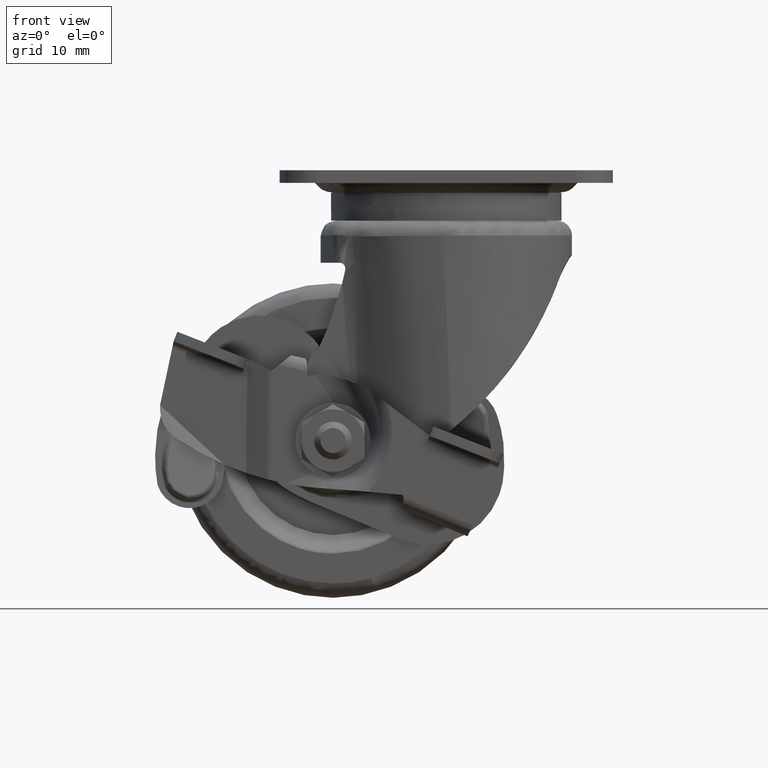
[diagram: clean part render]
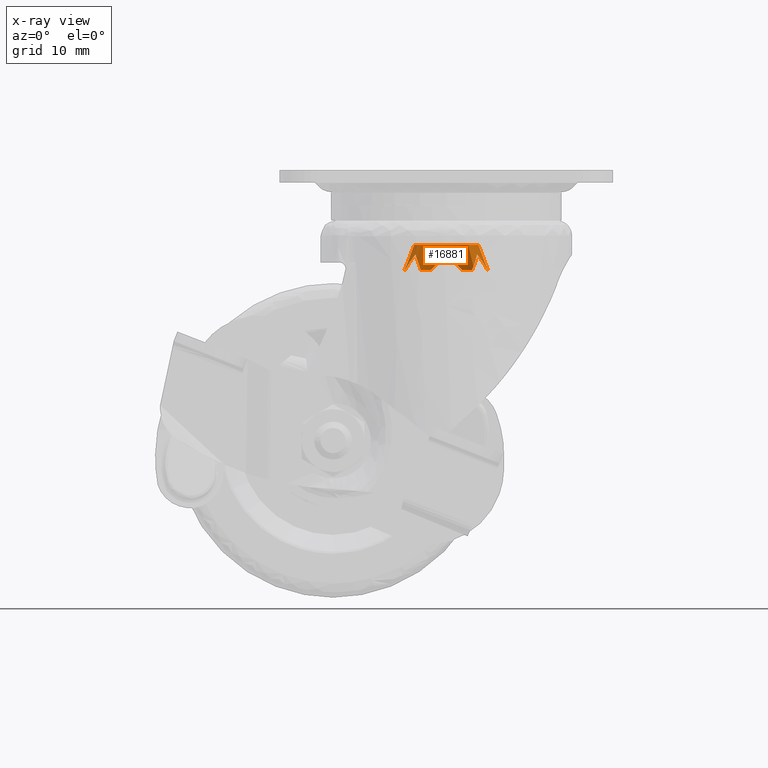
[diagram: x-ray — body ghosted, one internal face saturated and labeled with its STEP entity id]
A machine part, front view, then the same camera in x-ray: the body is ghosted and one INTERNAL B-rep face — a face not visible from any outside direction — is saturated and labeled: STEP entity #16881.
In plain terms, the highlighted face is a freeform B-spline surface patch.
Its self-contained STEP definition (entity closure, byte-faithful):
#16635=CARTESIAN_POINT('',(-5.449134084889035,-3.937214617433554,-16.096959609233267));
#16636=CARTESIAN_POINT('',(-8.955191026088144,0.915194061853354,-16.096959609233270));
#16637=CARTESIAN_POINT('',(-4.540061171503106,4.958080856323520,-16.096959609233270));
#16638=CARTESIAN_POINT('',(0.418019684820414,9.498142027826624,-16.096959609233267));
#16639=CARTESIAN_POINT('',(4.958080856323520,4.540061171503107,-16.096959609233270));
#16640=CARTESIAN_POINT('',(9.498142027826624,-0.418019684820414,-16.096959609233267));
#16641=CARTESIAN_POINT('',(4.540061171503107,-4.958080856323520,-16.096959609233270));
#16642=CARTESIAN_POINT('',(-4.705523250297759,-3.399926416771786,-13.927099902690951));
#16643=CARTESIAN_POINT('',(-7.733129507855321,0.790302985666593,-13.927099902690959));
#16644=CARTESIAN_POINT('',(-3.920506096468532,4.281481127613257,-13.927099902690959));
#16645=CARTESIAN_POINT('',(0.360975031144725,8.201987224081789,-13.927099902690951));
#16646=CARTESIAN_POINT('',(4.281481127613257,3.920506096468534,-13.927099902690959));
#16647=CARTESIAN_POINT('',(8.201987224081789,-0.360975031144724,-13.927099902690951));
#16648=CARTESIAN_POINT('',(3.920506096468534,-4.281481127613257,-13.927099902690959));
#16649=CARTESIAN_POINT('',(-4.088614831668794,-2.954185716395307,-11.697600842134889));
#16650=CARTESIAN_POINT('',(-6.719292694820312,0.686691859083704,-11.697600842134888));
#16651=CARTESIAN_POINT('',(-3.406515815781985,3.720165921773288,-11.697600842134893));
#16652=CARTESIAN_POINT('',(0.313650105991302,7.126681737555273,-11.697600842134886));
#16653=CARTESIAN_POINT('',(3.720165921773288,3.406515815781986,-11.697600842134893));
#16654=CARTESIAN_POINT('',(7.126681737555273,-0.313650105991301,-11.697600842134886));
#16655=CARTESIAN_POINT('',(3.406515815781986,-3.720165921773288,-11.697600842134893));
#16663=(BOUNDED_SURFACE()B_SPLINE_SURFACE(2,2,((#16635,#16642,#16649),(#16636,#16643,#16650),(#16637,#16644,#16651),(#16638,#16645,#16652),(#16639,#16646,#16653),(#16640,#16647,#16654),(#16641,#16648,#16655)),.UNSPECIFIED.,.F.,.F.,.U.)B_SPLINE_SURFACE_WITH_KNOTS((3,2,2,3),(3,3),(0.0,10.247454277570441,21.385991535799182,32.524528794027923),(0.0,4.710170384211757),.UNSPECIFIED.)GEOMETRIC_REPRESENTATION_ITEM()RATIONAL_B_SPLINE_SURFACE(((0.927555625836429,0.926969669273202,0.927553622222715),(0.708145766048240,0.707698415347345,0.708144236381955),(0.969347980081799,0.968735622401937,0.969345886192384),(0.685432530045322,0.684999527777380,0.685431049441918),(0.969347980081799,0.968735622401937,0.969345886192384),(0.685432530045322,0.684999527777380,0.685431049441918),(0.969347980081799,0.968735622401937,0.969345886192384)))REPRESENTATION_ITEM('')SURFACE());
#16664=CARTESIAN_POINT('',(-4.144877228666406,-2.994837520659926,-11.899865000006351));
#16665=VERTEX_POINT('',#16664);
#16666=CARTESIAN_POINT('',(-5.113615063323320,0.0,-11.899865000000020));
#16667=VERTEX_POINT('',#16666);
#16668=CARTESIAN_POINT('',(-4.144877228666406,-2.994837520659926,-11.899865000006351));
#16669=CARTESIAN_POINT('',(-4.359644845351428,-2.697705762188450,-11.899865000004960));
#16670=CARTESIAN_POINT('',(-4.674989001811476,-2.144347411354441,-11.899865000002890));
#16671=CARTESIAN_POINT('',(-5.024108949010861,-1.133122832408481,-11.899865000000601));
#16672=CARTESIAN_POINT('',(-5.113726585576830,-0.433287944701465,-11.899865000000020));
#16673=CARTESIAN_POINT('',(-5.113615063323320,0.0,-11.899865000000020));
#16674=B_SPLINE_CURVE_WITH_KNOTS('',3,(#16668,#16669,#16670,#16671,#16672,#16673),.UNSPECIFIED.,.F.,.U.,(4,1,1,4),(0.000000018171117,1.099872148239919,1.899758068785403,3.199606790686906),.UNSPECIFIED.);
#16675=EDGE_CURVE('',#16665,#16667,#16674,.T.);
#16676=ORIENTED_EDGE('',*,*,#16675,.T.);
#16677=CARTESIAN_POINT('',(0.000001847917771,5.113615063322986,-11.899865000000020));
#16678=VERTEX_POINT('',#16677);
#16679=CARTESIAN_POINT('',(-5.113615063323320,0.0,-11.899865000000020));
#16680=CARTESIAN_POINT('',(-5.113711384259623,0.418357568356855,-11.899865000000069));
#16681=CARTESIAN_POINT('',(-5.012962583121976,1.234116018872533,-11.899864999999989));
#16682=CARTESIAN_POINT('',(-4.617641409608623,2.277967402407127,-11.899865000000011));
#16683=CARTESIAN_POINT('',(-4.055995312073820,3.164848055509804,-11.899865000000069));
#16684=CARTESIAN_POINT('',(-3.407620640970472,3.854282766076485,-11.899864999999970));
#16685=CARTESIAN_POINT('',(-2.556843280218541,4.469248250524406,-11.899865000000011));
#16686=CARTESIAN_POINT('',(-1.443218512676358,4.971166821555190,-11.899865000000039));
#16687=CARTESIAN_POINT('',(-0.522965593392162,5.113869616237612,-11.899865000000000));
#16688=CARTESIAN_POINT('',(0.000001847917771,5.113615063322986,-11.899865000000020));
#16689=B_SPLINE_CURVE_WITH_KNOTS('',3,(#16679,#16680,#16681,#16682,#16683,#16684,#16685,#16686,#16687,#16688),.UNSPECIFIED.,.F.,.U.,(4,1,1,1,1,1,1,4),(0.000000179408039,1.255058180444232,2.447407358371201,3.325987980235237,4.392725890232030,5.271307691343422,6.463656868919114,8.032499199850999),.UNSPECIFIED.);
#16690=EDGE_CURVE('',#16667,#16678,#16689,.T.);
#16691=ORIENTED_EDGE('',*,*,#16690,.T.);
#16692=CARTESIAN_POINT('',(5.113615063323320,0.0,-11.899865000000020));
#16693=VERTEX_POINT('',#16692);
#16694=CARTESIAN_POINT('',(0.000001847917771,5.113615063322986,-11.899865000000020));
#16695=CARTESIAN_POINT('',(0.418362890446319,5.113725704022307,-11.899865000000011));
#16696=CARTESIAN_POINT('',(1.150429971335089,5.023241293209762,-11.899865000000020));
#16697=CARTESIAN_POINT('',(2.200989269925056,4.654606701367002,-11.899865000000039));
#16698=CARTESIAN_POINT('',(3.230066656679942,4.038044947416919,-11.899864999999959));
#16699=CARTESIAN_POINT('',(4.101307911535546,3.145108270504455,-11.899865000000140));
#16700=CARTESIAN_POINT('',(4.677478748522788,2.142027345781802,-11.899864999999849));
#16701=CARTESIAN_POINT('',(5.025840476509022,1.129514862383555,-11.899865000000229));
#16702=CARTESIAN_POINT('',(5.113710282190726,0.418358289347145,-11.899864999999821));
#16703=CARTESIAN_POINT('',(5.113615063323320,0.0,-11.899865000000020));
#16704=B_SPLINE_CURVE_WITH_KNOTS('',3,(#16694,#16695,#16696,#16697,#16698,#16699,#16700,#16701,#16702,#16703),.UNSPECIFIED.,.F.,.U.,(4,1,1,1,1,1,1,4),(0.000000180047652,1.255057855379913,2.196390928832205,3.325987117578224,4.832014713771744,5.898863194924815,6.777439440918193,8.032497116803933),.UNSPECIFIED.);
#16705=EDGE_CURVE('',#16678,#16693,#16704,.T.);
#16706=ORIENTED_EDGE('',*,*,#16705,.T.);
#16707=CARTESIAN_POINT('',(3.453392020372506,-3.771358186314378,-11.899865000001579));
#16708=VERTEX_POINT('',#16707);
#16709=CARTESIAN_POINT('',(5.113615063323320,0.0,-11.899865000000020));
#16710=CARTESIAN_POINT('',(5.113830415033669,-0.485991131172849,-11.899864999999970));
#16711=CARTESIAN_POINT('',(5.005698864520578,-1.236895930233372,-11.899865000000220));
#16712=CARTESIAN_POINT('',(4.643901890619401,-2.189705584385952,-11.899865000000410));
#16713=CARTESIAN_POINT('',(4.182870625596286,-2.998028858867432,-11.899865000000929));
#16714=CARTESIAN_POINT('',(3.746699039421263,-3.502900552549378,-11.899865000001370));
#16715=CARTESIAN_POINT('',(3.453392020372506,-3.771358186314378,-11.899865000001579));
#16716=B_SPLINE_CURVE_WITH_KNOTS('',3,(#16709,#16710,#16711,#16712,#16713,#16714,#16715),.UNSPECIFIED.,.F.,.U.,(4,1,1,1,4),(0.000000053353065,1.457902072303825,2.253100577155337,3.048332165611606,4.241162091269716),.UNSPECIFIED.);
#16717=EDGE_CURVE('',#16693,#16708,#16716,.T.);
#16718=ORIENTED_EDGE('',*,*,#16717,.T.);
#16719=CARTESIAN_POINT('',(4.324194217738986,-4.722338260216011,-15.327437983918720));
#16720=VERTEX_POINT('',#16719);
#16721=CARTESIAN_POINT('',(4.324194217738986,-4.722338260216011,-15.327437983918720));
#16722=CARTESIAN_POINT('',(4.012688057788555,-4.382150612679456,-14.197076791412419));
#16723=CARTESIAN_POINT('',(3.722273278536443,-4.064996304765987,-13.053970659251540));
#16724=CARTESIAN_POINT('',(3.453392020372506,-3.771358186314378,-11.899865000001579));
#16725=B_SPLINE_CURVE_WITH_KNOTS('',3,(#16721,#16722,#16723,#16724),.UNSPECIFIED.,.F.,.U.,(4,4),(5.025935E-011,3.662559241325293),.UNSPECIFIED.);
#16726=EDGE_CURVE('',#16720,#16708,#16725,.T.);
#16727=ORIENTED_EDGE('',*,*,#16726,.F.);
#16728=CARTESIAN_POINT('',(4.894200365697100,-2.825667898603170,-13.399858000000039));
#16729=VERTEX_POINT('',#16728);
#16730=CARTESIAN_POINT('',(4.324194217738986,-4.722338260216011,-15.327437983918720));
#16731=CARTESIAN_POINT('',(4.416888238713627,-4.510158791980711,-15.097336728784960));
#16732=CARTESIAN_POINT('',(4.501017313528910,-4.294113558064429,-14.868170094410530));
#16733=CARTESIAN_POINT('',(4.713613942445361,-3.672088107631849,-14.223177876083060));
#16734=CARTESIAN_POINT('',(4.821364310443980,-3.256757244240304,-13.809612984940690));
#16735=CARTESIAN_POINT('',(4.894200365697100,-2.825667898603170,-13.399858000000039));
#16736=B_SPLINE_CURVE_WITH_KNOTS('',3,(#16730,#16731,#16732,#16733,#16734,#16735),.UNSPECIFIED.,.F.,.U.,(4,2,4),(0.226253729383350,0.500000000000000,1.0),.UNSPECIFIED.);
#16737=EDGE_CURVE('',#16720,#16729,#16736,.T.);
#16738=ORIENTED_EDGE('',*,*,#16737,.T.);
#16739=CARTESIAN_POINT('',(6.577023302978340,-0.910486745589110,-15.899865000000050));
#16740=VERTEX_POINT('',#16739);
#16741=CARTESIAN_POINT('',(4.894200365697100,-2.825667898603170,-13.399858000000039));
#16742=CARTESIAN_POINT('',(5.231120287556204,-2.547046153782086,-13.809611469992040));
#16743=CARTESIAN_POINT('',(5.536935801285791,-2.246066967007685,-14.223174848613940));
#16744=CARTESIAN_POINT('',(6.095771606596153,-1.606160077940586,-15.056768373257899));
#16745=CARTESIAN_POINT('',(6.348696873278837,-1.267164072993359,-15.476810158664900));
#16746=CARTESIAN_POINT('',(6.577023302978340,-0.910486745589110,-15.899865000000050));
#16747=B_SPLINE_CURVE_WITH_KNOTS('',3,(#16741,#16742,#16743,#16744,#16745,#16746),.UNSPECIFIED.,.F.,.U.,(4,2,4),(0.0,0.500000000000000,1.0),.UNSPECIFIED.);
#16748=EDGE_CURVE('',#16729,#16740,#16747,.T.);
#16749=ORIENTED_EDGE('',*,*,#16748,.T.);
#16750=CARTESIAN_POINT('',(6.577023302978351,0.910486745589032,-15.899865000000050));
#16751=VERTEX_POINT('',#16750);
#16752=CARTESIAN_POINT('',(6.577023302978351,0.910486745589032,-15.899865000000050));
#16753=CARTESIAN_POINT('',(6.660628315754039,0.307332871546580,-15.899865000000050));
#16754=CARTESIAN_POINT('',(6.660676238427735,-0.307332743751825,-15.899865000000061));
#16755=CARTESIAN_POINT('',(6.577023302978340,-0.910486745589110,-15.899865000000050));
#16756=B_SPLINE_CURVE_WITH_KNOTS('',3,(#16752,#16753,#16754,#16755),.UNSPECIFIED.,.F.,.U.,(4,4),(2.920820E-009,1.826751683743316),.UNSPECIFIED.);
#16757=EDGE_CURVE('',#16751,#16740,#16756,.T.);
#16758=ORIENTED_EDGE('',*,*,#16757,.F.);
#16759=CARTESIAN_POINT('',(4.894200365691440,2.825667898599895,-13.399858000000039));
#16760=VERTEX_POINT('',#16759);
#16761=CARTESIAN_POINT('',(6.577023302978351,0.910486745589032,-15.899865000000050));
#16762=CARTESIAN_POINT('',(6.348696873278788,1.267164072993443,-15.476810158664840));
#16763=CARTESIAN_POINT('',(6.095771606596045,1.606160077940671,-15.056768373257650));
#16764=CARTESIAN_POINT('',(5.536935801285511,2.246066967007929,-14.223174848613469));
#16765=CARTESIAN_POINT('',(5.231120287555808,2.547046153782473,-13.809611469991530));
#16766=CARTESIAN_POINT('',(4.894200365691440,2.825667898599895,-13.399858000000039));
#16767=B_SPLINE_CURVE_WITH_KNOTS('',3,(#16761,#16762,#16763,#16764,#16765,#16766),.UNSPECIFIED.,.F.,.U.,(4,2,4),(0.0,0.500000000000000,1.0),.UNSPECIFIED.);
#16768=EDGE_CURVE('',#16751,#16760,#16767,.T.);
#16769=ORIENTED_EDGE('',*,*,#16768,.T.);
#16770=CARTESIAN_POINT('',(4.077016302978429,5.240625888866870,-15.899865000000050));
#16771=VERTEX_POINT('',#16770);
#16772=CARTESIAN_POINT('',(4.894200365691440,2.825667898599895,-13.399858000000039));
#16773=CARTESIAN_POINT('',(4.821366817564710,3.256759982384433,-13.809611469991211));
#16774=CARTESIAN_POINT('',(4.713618952672385,3.672093579533001,-14.223174848613141));
#16775=CARTESIAN_POINT('',(4.438861233338696,4.476013028009848,-15.056768373257309));
#16776=CARTESIAN_POINT('',(4.271744714614335,4.864550736689665,-15.476810158664479));
#16777=CARTESIAN_POINT('',(4.077016302978429,5.240625888866870,-15.899865000000050));
#16778=B_SPLINE_CURVE_WITH_KNOTS('',3,(#16772,#16773,#16774,#16775,#16776,#16777),.UNSPECIFIED.,.F.,.U.,(4,2,4),(0.0,0.500000000000000,1.0),.UNSPECIFIED.);
#16779=EDGE_CURVE('',#16760,#16771,#16778,.T.);
#16780=ORIENTED_EDGE('',*,*,#16779,.T.);
#16781=CARTESIAN_POINT('',(2.500007000000000,6.151112634456040,-15.899865000000050));
#16782=VERTEX_POINT('',#16781);
#16783=CARTESIAN_POINT('',(2.500007000000000,6.151112634456040,-15.899865000000050));
#16784=CARTESIAN_POINT('',(3.064177745520603,5.921975712761816,-15.899865000000020));
#16785=CARTESIAN_POINT('',(3.596474571809047,5.614611588297344,-15.899865000000080));
#16786=CARTESIAN_POINT('',(4.077016302978429,5.240625888866870,-15.899865000000050));
#16787=B_SPLINE_CURVE_WITH_KNOTS('',3,(#16783,#16784,#16785,#16786),.UNSPECIFIED.,.F.,.U.,(4,4),(2.920794E-009,1.826751683743470),.UNSPECIFIED.);
#16788=EDGE_CURVE('',#16782,#16771,#16787,.T.);
#16789=ORIENTED_EDGE('',*,*,#16788,.F.);
#16790=CARTESIAN_POINT('',(4.440892E-016,5.651335797204450,-13.399858000000039));
#16791=VERTEX_POINT('',#16790);
#16792=CARTESIAN_POINT('',(2.500007000000000,6.151112634456040,-15.899865000000050));
#16793=CARTESIAN_POINT('',(2.076952158664535,6.131714809682737,-15.476810158664589));
#16794=CARTESIAN_POINT('',(1.656910373257463,6.082173105950175,-15.056768373257521));
#16795=CARTESIAN_POINT('',(0.823316848613429,5.918160546540650,-14.223174848613480));
#16796=CARTESIAN_POINT('',(0.409753469991536,5.803806136166695,-13.809611469991580));
#16797=CARTESIAN_POINT('',(4.440892E-016,5.651335797204450,-13.399858000000039));
#16798=B_SPLINE_CURVE_WITH_KNOTS('',3,(#16792,#16793,#16794,#16795,#16796,#16797),.UNSPECIFIED.,.F.,.U.,(4,2,4),(0.0,0.500000000000000,1.0),.UNSPECIFIED.);
#16799=EDGE_CURVE('',#16782,#16791,#16798,.T.);
#16800=ORIENTED_EDGE('',*,*,#16799,.T.);
#16801=CARTESIAN_POINT('',(-2.500007000000000,6.151112634456040,-15.899865000000050));
#16802=VERTEX_POINT('',#16801);
#16803=CARTESIAN_POINT('',(4.440892E-016,5.651335797204450,-13.399858000000039));
#16804=CARTESIAN_POINT('',(-0.409753469991538,5.803806136166697,-13.809611469991580));
#16805=CARTESIAN_POINT('',(-0.823316848613430,5.918160546540674,-14.223174848613469));
#16806=CARTESIAN_POINT('',(-1.656910373257462,6.082173105950196,-15.056768373257500));
#16807=CARTESIAN_POINT('',(-2.076952158664536,6.131714809682729,-15.476810158664581));
#16808=CARTESIAN_POINT('',(-2.500007000000000,6.151112634456040,-15.899865000000050));
#16809=B_SPLINE_CURVE_WITH_KNOTS('',3,(#16803,#16804,#16805,#16806,#16807,#16808),.UNSPECIFIED.,.F.,.U.,(4,2,4),(0.0,0.500000000000000,1.0),.UNSPECIFIED.);
#16810=EDGE_CURVE('',#16791,#16802,#16809,.T.);
#16811=ORIENTED_EDGE('',*,*,#16810,.T.);
#16812=CARTESIAN_POINT('',(-4.077016302978365,5.240625888866920,-15.899865000000050));
#16813=VERTEX_POINT('',#16812);
#16814=CARTESIAN_POINT('',(-4.077016302978365,5.240625888866920,-15.899865000000050));
#16815=CARTESIAN_POINT('',(-3.596471713267268,5.614607448285160,-15.899865000000061));
#16816=CARTESIAN_POINT('',(-3.064179388222162,5.921979755899367,-15.899865000000050));
#16817=CARTESIAN_POINT('',(-2.500007000000000,6.151112634456040,-15.899865000000050));
#16818=B_SPLINE_CURVE_WITH_KNOTS('',3,(#16814,#16815,#16816,#16817),.UNSPECIFIED.,.F.,.U.,(4,4),(2.920802E-009,1.826751683743388),.UNSPECIFIED.);
#16819=EDGE_CURVE('',#16813,#16802,#16818,.T.);
#16820=ORIENTED_EDGE('',*,*,#16819,.F.);
#16821=CARTESIAN_POINT('',(-4.894200365691220,2.825667898599780,-13.399858000000039));
#16822=VERTEX_POINT('',#16821);
#16823=CARTESIAN_POINT('',(-4.077016302978365,5.240625888866920,-15.899865000000050));
#16824=CARTESIAN_POINT('',(-4.271744714614695,4.864550736689512,-15.476810158664810));
#16825=CARTESIAN_POINT('',(-4.438861233339104,4.476013028009661,-15.056768373257659));
#16826=CARTESIAN_POINT('',(-4.713618952672745,3.672093579532771,-14.223174848613480));
#16827=CARTESIAN_POINT('',(-4.821366817565028,3.256759982384180,-13.809611469991539));
#16828=CARTESIAN_POINT('',(-4.894200365691220,2.825667898599780,-13.399858000000039));
#16829=B_SPLINE_CURVE_WITH_KNOTS('',3,(#16823,#16824,#16825,#16826,#16827,#16828),.UNSPECIFIED.,.F.,.U.,(4,2,4),(0.0,0.500000000000000,1.0),.UNSPECIFIED.);
#16830=EDGE_CURVE('',#16813,#16822,#16829,.T.);
#16831=ORIENTED_EDGE('',*,*,#16830,.T.);
#16832=CARTESIAN_POINT('',(-6.577023302978330,0.910486745589194,-15.899865000000050));
#16833=VERTEX_POINT('',#16832);
#16834=CARTESIAN_POINT('',(-4.894200365691220,2.825667898599780,-13.399858000000039));
#16835=CARTESIAN_POINT('',(-5.231120287555834,2.547046153782106,-13.809611469991159));
#16836=CARTESIAN_POINT('',(-5.536935801285511,2.246066967007587,-14.223174848613130));
#16837=CARTESIAN_POINT('',(-6.095771606595992,1.606160077940312,-15.056768373257301));
#16838=CARTESIAN_POINT('',(-6.348696873278702,1.267164072993017,-15.476810158664451));
#16839=CARTESIAN_POINT('',(-6.577023302978330,0.910486745589194,-15.899865000000050));
#16840=B_SPLINE_CURVE_WITH_KNOTS('',3,(#16834,#16835,#16836,#16837,#16838,#16839),.UNSPECIFIED.,.F.,.U.,(4,2,4),(0.0,0.500000000000000,1.0),.UNSPECIFIED.);
#16841=EDGE_CURVE('',#16822,#16833,#16840,.T.);
#16842=ORIENTED_EDGE('',*,*,#16841,.T.);
#16843=CARTESIAN_POINT('',(-6.577023302978330,-0.910486745589200,-15.899865000000050));
#16844=VERTEX_POINT('',#16843);
#16845=CARTESIAN_POINT('',(-6.577023302978330,-0.910486745589200,-15.899865000000050));
#16846=CARTESIAN_POINT('',(-6.660628315754035,-0.307332871546662,-15.899865000000039));
#16847=CARTESIAN_POINT('',(-6.660676238427746,0.307332743751828,-15.899865000000061));
#16848=CARTESIAN_POINT('',(-6.577023302978330,0.910486745589194,-15.899865000000050));
#16849=B_SPLINE_CURVE_WITH_KNOTS('',3,(#16845,#16846,#16847,#16848),.UNSPECIFIED.,.F.,.U.,(4,4),(2.920834E-009,1.826751683743570),.UNSPECIFIED.);
#16850=EDGE_CURVE('',#16844,#16833,#16849,.T.);
#16851=ORIENTED_EDGE('',*,*,#16850,.F.);
#16852=CARTESIAN_POINT('',(-4.894200365696990,-2.825667898603170,-13.399858000000039));
#16853=VERTEX_POINT('',#16852);
#16854=CARTESIAN_POINT('',(-6.577023302978330,-0.910486745589200,-15.899865000000050));
#16855=CARTESIAN_POINT('',(-6.348696873278767,-1.267164072993007,-15.476810158664600));
#16856=CARTESIAN_POINT('',(-6.095771606596105,-1.606160077940156,-15.056768373257530));
#16857=CARTESIAN_POINT('',(-5.536935801285785,-2.246066967007287,-14.223174848613571));
#16858=CARTESIAN_POINT('',(-5.231120287556208,-2.547046153781794,-13.809611469991740));
#16859=CARTESIAN_POINT('',(-4.894200365696990,-2.825667898603170,-13.399858000000039));
#16860=B_SPLINE_CURVE_WITH_KNOTS('',3,(#16854,#16855,#16856,#16857,#16858,#16859),.UNSPECIFIED.,.F.,.U.,(4,2,4),(0.0,0.500000000000000,1.0),.UNSPECIFIED.);
#16861=EDGE_CURVE('',#16844,#16853,#16860,.T.);
#16862=ORIENTED_EDGE('',*,*,#16861,.T.);
#16863=CARTESIAN_POINT('',(-4.764111445226524,-3.442258701748765,-13.998900932143110));
#16864=VERTEX_POINT('',#16863);
#16865=CARTESIAN_POINT('',(-4.894200365696990,-2.825667898603170,-13.399858000000039));
#16866=CARTESIAN_POINT('',(-4.858896240906432,-3.034180147699646,-13.598092023131350));
#16867=CARTESIAN_POINT('',(-4.815507452223546,-3.239835722323186,-13.797894430152761));
#16868=CARTESIAN_POINT('',(-4.764111445226524,-3.442258701748765,-13.998900932143110));
#16869=B_SPLINE_CURVE_WITH_KNOTS('',3,(#16865,#16866,#16867,#16868),.UNSPECIFIED.,.F.,.U.,(4,4),(9.044643E-011,0.869592507956483),.UNSPECIFIED.);
#16870=EDGE_CURVE('',#16853,#16864,#16869,.T.);
#16871=ORIENTED_EDGE('',*,*,#16870,.T.);
#16872=CARTESIAN_POINT('',(-4.764111445226524,-3.442258701748765,-13.998900932143110));
#16873=CARTESIAN_POINT('',(-4.548165493244564,-3.286229221618616,-13.303578362773480));
#16874=CARTESIAN_POINT('',(-4.341715207819485,-3.137060735655207,-12.603767350734101));
#16875=CARTESIAN_POINT('',(-4.144877228666406,-2.994837520659926,-11.899865000006351));
#16876=B_SPLINE_CURVE_WITH_KNOTS('',3,(#16872,#16873,#16874,#16875),.UNSPECIFIED.,.F.,.U.,(4,4),(2.289990E-011,2.233846001335688),.UNSPECIFIED.);
#16877=EDGE_CURVE('',#16864,#16665,#16876,.T.);
#16878=ORIENTED_EDGE('',*,*,#16877,.T.);
#16879=EDGE_LOOP('',(#16676,#16691,#16706,#16718,#16727,#16738,#16749,#16758,#16769,#16780,#16789,#16800,#16811,#16820,#16831,#16842,#16851,#16862,#16871,#16878));
#16880=FACE_OUTER_BOUND('',#16879,.T.);
#16881=ADVANCED_FACE('',(#16880),#16663,.F.);